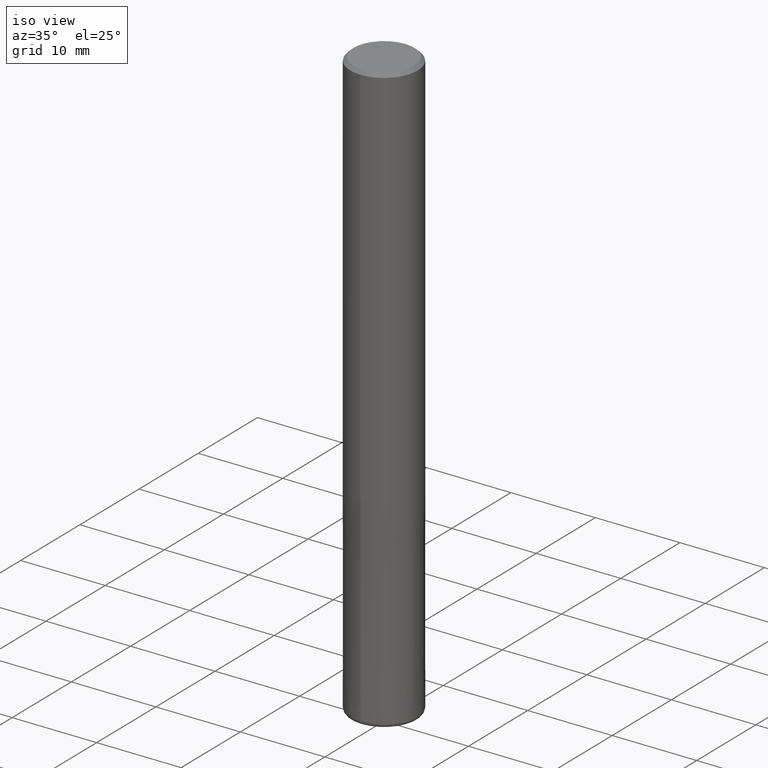
[diagram: clean part render]
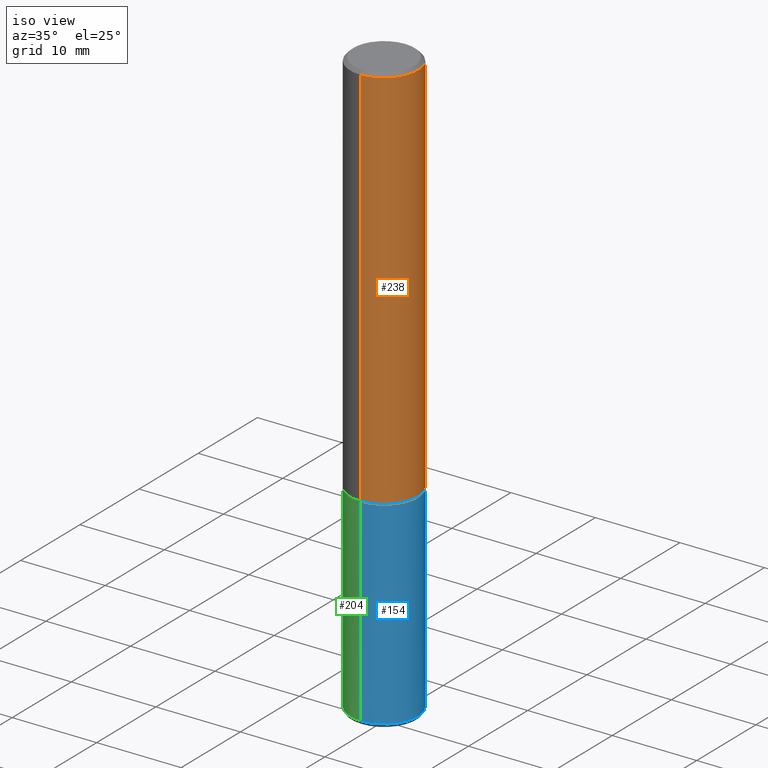
[diagram: same view with three faces highlighted in distinct colors, each labeled with its STEP entity id]
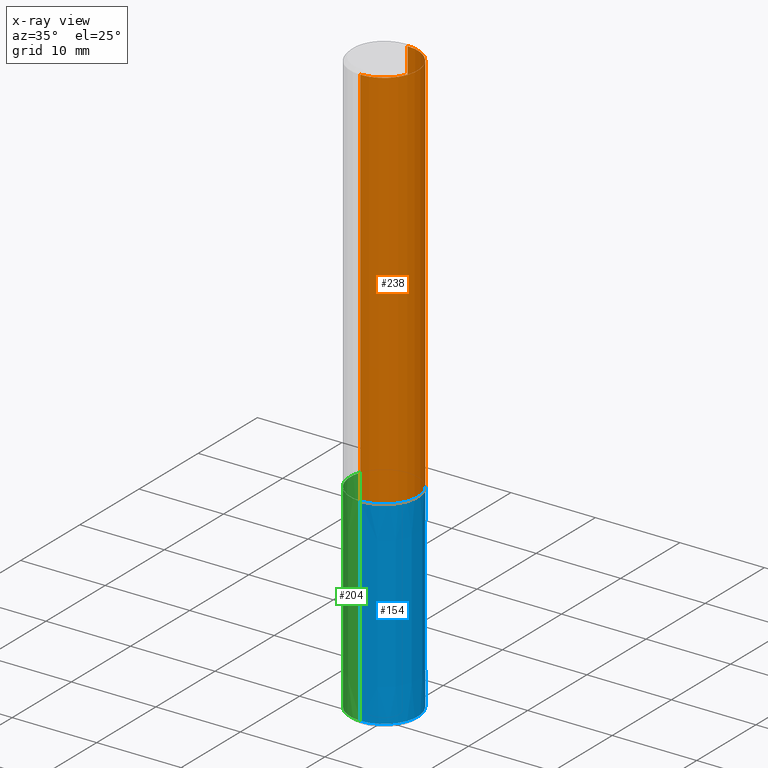
[diagram: x-ray of the same camera — body ghosted, the three highlighted faces saturated]
A machine part, iso view with three faces highlighted in distinct colors.
The next image is the same camera in x-ray (body ghosted, the three faces saturated) — at least one of them is partly hidden behind the body in this view.
Their STEP definitions:

[orange] entity #238 — the highlighted cylindrical surface (partial cylindrical patch) has radius 4 mm, axis along (-0, -0, 1).
#106=VERTEX_POINT('',#267);
#120=VERTEX_POINT('',#283);
#122=EDGE_CURVE('',#150,#120,#285,.T.);
#134=EDGE_CURVE('',#170,#150,#300,.T.);
#150=VERTEX_POINT('',#318);
#170=VERTEX_POINT('',#342);
#196=EDGE_CURVE('',#120,#106,#369,.T.);
#228=EDGE_CURVE('',#170,#106,#404,.T.);
#238=ADVANCED_FACE('',(#418),#419,.T.);
#267=CARTESIAN_POINT('',(4.89842541528951E-016,-4.0,-0.399999999999999));
#283=CARTESIAN_POINT('',(4.89842541528951E-016,-4.0,-46.0));
#285=CIRCLE('',#462,4.0);
#300=LINE('',#482,#483);
#318=CARTESIAN_POINT('',(0.0,4.0,-46.0));
#342=CARTESIAN_POINT('',(0.0,4.0,-0.399999999999999));
#369=LINE('',#568,#569);
#404=CIRCLE('',#612,4.0);
#418=FACE_OUTER_BOUND('',#626,.T.);
#419=CYLINDRICAL_SURFACE('',#627,4.0);
#462=AXIS2_PLACEMENT_3D('',#660,#661,#662);
#482=CARTESIAN_POINT('',(-4.89842541528951E-016,4.0,-23.2));
#483=VECTOR('',#686,1.0);
#568=CARTESIAN_POINT('',(4.89842541528951E-016,-4.0,-23.2));
#569=VECTOR('',#772,1.0);
#612=AXIS2_PLACEMENT_3D('',#812,#813,#814);
#626=EDGE_LOOP('',(#838,#839,#840,#841));
#627=AXIS2_PLACEMENT_3D('',#842,#843,#844);
#660=CARTESIAN_POINT('',(0.0,0.0,-46.0));
#661=DIRECTION('',(0.0,0.0,-1.0));
#662=DIRECTION('',(0.0,1.0,0.0));
#686=DIRECTION('',(0.0,0.0,-1.0));
#772=DIRECTION('',(-0.0,-0.0,1.0));
#812=CARTESIAN_POINT('',(0.0,0.0,-0.399999999999999));
#813=DIRECTION('',(0.0,0.0,-1.0));
#814=DIRECTION('',(0.0,1.0,0.0));
#838=ORIENTED_EDGE('',*,*,#134,.F.);
#839=ORIENTED_EDGE('',*,*,#228,.T.);
#840=ORIENTED_EDGE('',*,*,#196,.F.);
#841=ORIENTED_EDGE('',*,*,#122,.F.);
#842=CARTESIAN_POINT('',(0.0,0.0,-23.2));
#843=DIRECTION('',(-0.0,-0.0,1.0));
#844=DIRECTION('',(0.0,1.0,0.0));

[blue] entity #154 — the highlighted conical surface has half-angle 0 deg.
#104=EDGE_CURVE('',#186,#210,#265,.T.);
#154=ADVANCED_FACE('',(#322),#323,.T.);
#186=VERTEX_POINT('',#359);
#188=EDGE_CURVE('',#206,#202,#361,.T.);
#202=VERTEX_POINT('',#376);
#206=VERTEX_POINT('',#381);
#210=VERTEX_POINT('',#385);
#242=EDGE_CURVE('',#202,#210,#423,.T.);
#244=EDGE_CURVE('',#186,#206,#425,.T.);
#265=CIRCLE('',#439,3.9999);
#322=FACE_OUTER_BOUND('',#508,.T.);
#323=CONICAL_SURFACE('',#509,3.99995,4.25531914891947E-006);
#359=CARTESIAN_POINT('',(0.0,3.9999,-46.0));
#361=CIRCLE('',#556,4.0);
#376=CARTESIAN_POINT('',(4.89842541528951E-016,-4.0,-69.5));
#381=CARTESIAN_POINT('',(0.0,4.0,-69.5));
#385=CARTESIAN_POINT('',(4.89830295465413E-016,-3.9999,-46.0));
#423=LINE('',#633,#634);
#425=LINE('',#637,#638);
#439=AXIS2_PLACEMENT_3D('',#640,#641,#642);
#508=EDGE_LOOP('',(#715,#716,#717,#718));
#509=AXIS2_PLACEMENT_3D('',#719,#720,#721);
#556=AXIS2_PLACEMENT_3D('',#760,#761,#762);
#633=CARTESIAN_POINT('',(4.89836418497182E-016,-3.99995,-57.75));
#634=VECTOR('',#848,1.0);
#637=CARTESIAN_POINT('',(-4.89836418497182E-016,3.99995,-57.75));
#638=VECTOR('',#849,1.0);
#640=CARTESIAN_POINT('',(0.0,0.0,-46.0));
#641=DIRECTION('',(0.0,0.0,-1.0));
#642=DIRECTION('',(0.0,1.0,0.0));
#715=ORIENTED_EDGE('',*,*,#244,.F.);
#716=ORIENTED_EDGE('',*,*,#104,.T.);
#717=ORIENTED_EDGE('',*,*,#242,.F.);
#718=ORIENTED_EDGE('',*,*,#188,.F.);
#719=CARTESIAN_POINT('',(0.0,0.0,-57.75));
#720=DIRECTION('',(0.0,-0.0,-1.0));
#721=DIRECTION('',(0.0,1.0,0.0));
#760=CARTESIAN_POINT('',(0.0,0.0,-69.5));
#761=DIRECTION('',(0.0,0.0,-1.0));
#762=DIRECTION('',(0.0,1.0,0.0));
#848=DIRECTION('',(-5.21109086729308E-022,4.25531914890662E-006,0.999999999990946));
#849=DIRECTION('',(-5.21109086729308E-022,4.25531914890662E-006,-0.999999999990946));

[green] entity #204 — the highlighted conical surface has half-angle 0 deg.
#156=EDGE_CURVE('',#202,#206,#325,.T.);
#186=VERTEX_POINT('',#359);
#202=VERTEX_POINT('',#376);
#204=ADVANCED_FACE('',(#378),#379,.T.);
#206=VERTEX_POINT('',#381);
#210=VERTEX_POINT('',#385);
#218=EDGE_CURVE('',#210,#186,#394,.T.);
#242=EDGE_CURVE('',#202,#210,#423,.T.);
#244=EDGE_CURVE('',#186,#206,#425,.T.);
#325=CIRCLE('',#512,4.0);
#359=CARTESIAN_POINT('',(0.0,3.9999,-46.0));
#376=CARTESIAN_POINT('',(4.89842541528951E-016,-4.0,-69.5));
#378=FACE_OUTER_BOUND('',#578,.T.);
#379=CONICAL_SURFACE('',#579,3.99995,4.25531914891947E-006);
#381=CARTESIAN_POINT('',(0.0,4.0,-69.5));
#385=CARTESIAN_POINT('',(4.89830295465413E-016,-3.9999,-46.0));
#394=CIRCLE('',#597,3.9999);
#423=LINE('',#633,#634);
#425=LINE('',#637,#638);
#512=AXIS2_PLACEMENT_3D('',#722,#723,#724);
#578=EDGE_LOOP('',(#782,#783,#784,#785));
#579=AXIS2_PLACEMENT_3D('',#786,#787,#788);
#597=AXIS2_PLACEMENT_3D('',#803,#804,#805);
#633=CARTESIAN_POINT('',(4.89836418497182E-016,-3.99995,-57.75));
#634=VECTOR('',#848,1.0);
#637=CARTESIAN_POINT('',(-4.89836418497182E-016,3.99995,-57.75));
#638=VECTOR('',#849,1.0);
#722=CARTESIAN_POINT('',(0.0,0.0,-69.5));
#723=DIRECTION('',(0.0,0.0,-1.0));
#724=DIRECTION('',(0.0,1.0,0.0));
#782=ORIENTED_EDGE('',*,*,#244,.T.);
#783=ORIENTED_EDGE('',*,*,#156,.F.);
#784=ORIENTED_EDGE('',*,*,#242,.T.);
#785=ORIENTED_EDGE('',*,*,#218,.T.);
#786=CARTESIAN_POINT('',(0.0,0.0,-57.75));
#787=DIRECTION('',(0.0,-0.0,-1.0));
#788=DIRECTION('',(0.0,1.0,0.0));
#803=CARTESIAN_POINT('',(0.0,0.0,-46.0));
#804=DIRECTION('',(0.0,0.0,-1.0));
#805=DIRECTION('',(0.0,1.0,0.0));
#848=DIRECTION('',(-5.21109086729308E-022,4.25531914890662E-006,0.999999999990946));
#849=DIRECTION('',(-5.21109086729308E-022,4.25531914890662E-006,-0.999999999990946));